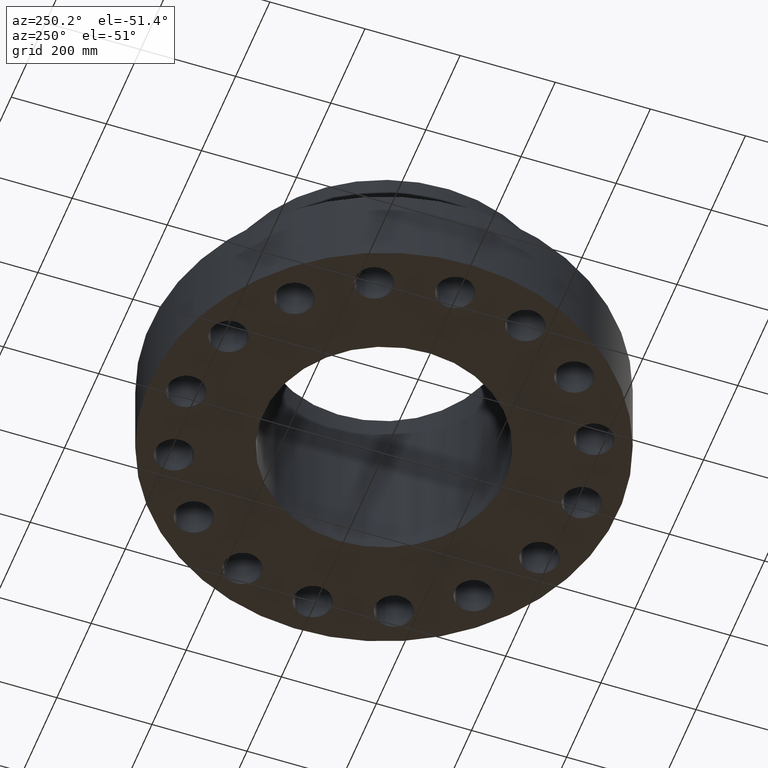
[diagram: clean part render]
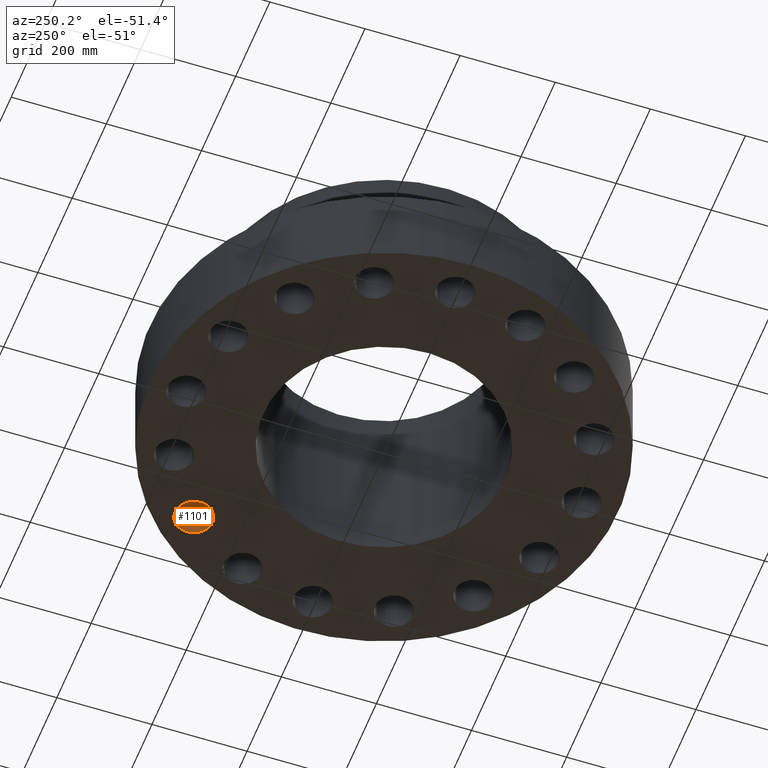
[diagram: same view with one face highlighted and labeled with its STEP entity id]
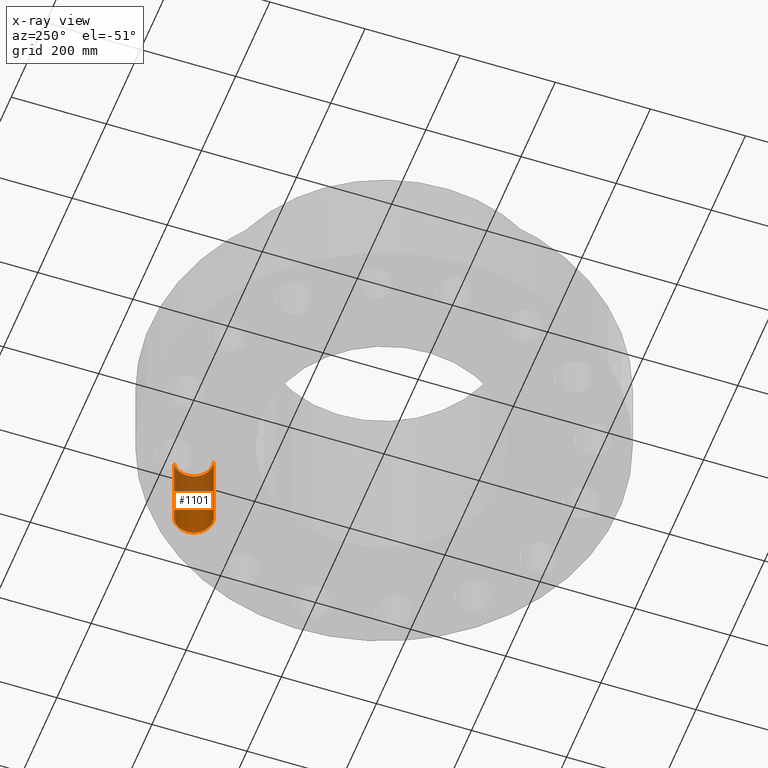
[diagram: x-ray of the same camera — body ghosted, the highlighted face saturated]
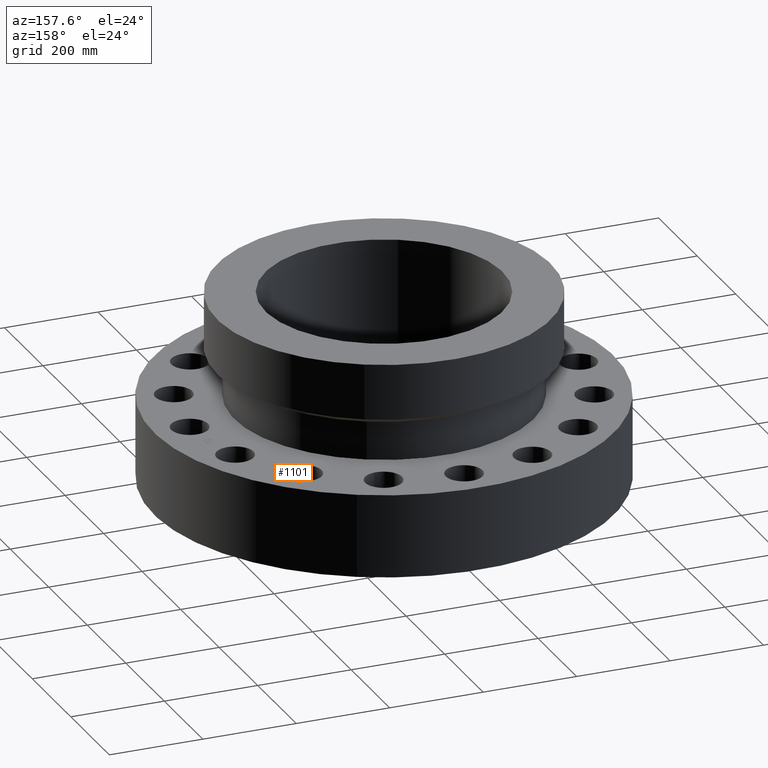
[diagram: same view with one face highlighted and labeled with its STEP entity id]
A machine part, auxiliary view. The second image highlights one B-rep face of the part: STEP entity #1101.
The next image is the same camera in x-ray: the body ghosted, the highlighted face saturated — about 33% of this face is hidden behind the body in this view.
A second angle (auxiliary view) of the same face is appended — the face is thin or edge-on in the first view.
In plain terms, the highlighted cylindrical surface (edge-blend (fillet) strip) has radius 39.624 mm, axis along (0, -0, 1).
Its self-contained STEP definition (entity closure, byte-faithful):
#382=AXIS2_PLACEMENT_3D('Circle Axis2P3D',#380,#381,$) ;
#1074=AXIS2_PLACEMENT_3D('Cylinder Axis2P3D',#1071,#1072,#1073) ;
#1092=AXIS2_PLACEMENT_3D('Circle Axis2P3D',#1090,#1091,$) ;
#375=CARTESIAN_POINT('Vertex',(11.1396718734,10.0819761192,7.00000000003)) ;
#377=CARTESIAN_POINT('Vertex',(12.0180752106,13.0757709648,7.00000000003)) ;
#380=CARTESIAN_POINT('Axis2P3D Location',(11.578873542,11.578873542,7.00000000003)) ;
#1071=CARTESIAN_POINT('Axis2P3D Location',(11.578873542,11.578873542,0.00393700787402)) ;
#1076=CARTESIAN_POINT('Line Origine',(11.1396718734,10.0819761192,3.50000000001)) ;
#1080=CARTESIAN_POINT('Vertex',(11.1396718734,10.0819761192,2.2401153548E-016)) ;
#1083=CARTESIAN_POINT('Line Origine',(12.0180752106,13.0757709648,3.50000000001)) ;
#1087=CARTESIAN_POINT('Vertex',(12.0180752106,13.0757709648,2.2401153548E-016)) ;
#1090=CARTESIAN_POINT('Axis2P3D Location',(11.578873542,11.578873542,0.)) ;
#381=DIRECTION('Axis2P3D Direction',(0.,0.,-0.0393700787402)) ;
#1072=DIRECTION('Axis2P3D Direction',(0.,-0.,0.0393700787402)) ;
#1073=DIRECTION('Axis2P3D XDirection',(0.0110842335096,0.0377775444876,0.)) ;
#1077=DIRECTION('Vector Direction',(0.,0.,0.0393700787402)) ;
#1084=DIRECTION('Vector Direction',(0.,0.,0.0393700787402)) ;
#1091=DIRECTION('Axis2P3D Direction',(0.,-0.,0.0393700787402)) ;
#1078=VECTOR('Line Direction',#1077,0.0393700787402) ;
#1085=VECTOR('Line Direction',#1084,0.0393700787402) ;
#1096=ORIENTED_EDGE('',*,*,#1082,.F.) ;
#1097=ORIENTED_EDGE('',*,*,#384,.F.) ;
#1098=ORIENTED_EDGE('',*,*,#1089,.T.) ;
#1099=ORIENTED_EDGE('',*,*,#1094,.T.) ;
#1101=ADVANCED_FACE('PartBody',(#1100),#1075,.F.) ;
#383=CIRCLE('generated circle',#382,1.56000000001) ;
#1093=CIRCLE('generated circle',#1092,1.56000000001) ;
#1075=CYLINDRICAL_SURFACE('generated cylinder',#1074,1.56000000001) ;
#384=EDGE_CURVE('',#378,#376,#383,.T.) ;
#1082=EDGE_CURVE('',#376,#1081,#1079,.F.) ;
#1089=EDGE_CURVE('',#378,#1088,#1086,.F.) ;
#1094=EDGE_CURVE('',#1088,#1081,#1093,.F.) ;
#1095=EDGE_LOOP('',(#1096,#1097,#1098,#1099)) ;
#1100=FACE_OUTER_BOUND('',#1095,.T.) ;
#1079=LINE('Line',#1076,#1078) ;
#1086=LINE('Line',#1083,#1085) ;
#376=VERTEX_POINT('',#375) ;
#378=VERTEX_POINT('',#377) ;
#1081=VERTEX_POINT('',#1080) ;
#1088=VERTEX_POINT('',#1087) ;